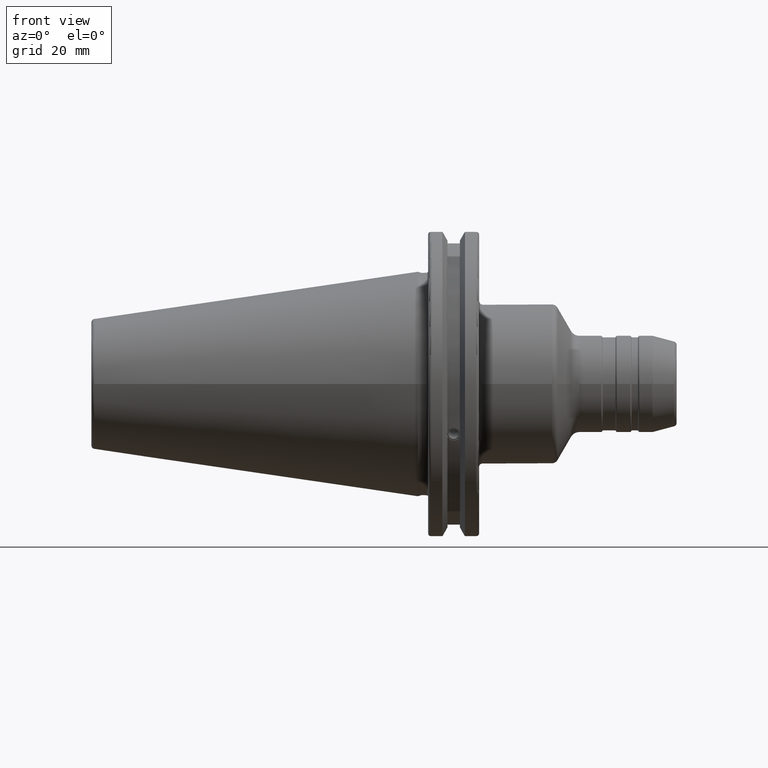
[diagram: clean part render]
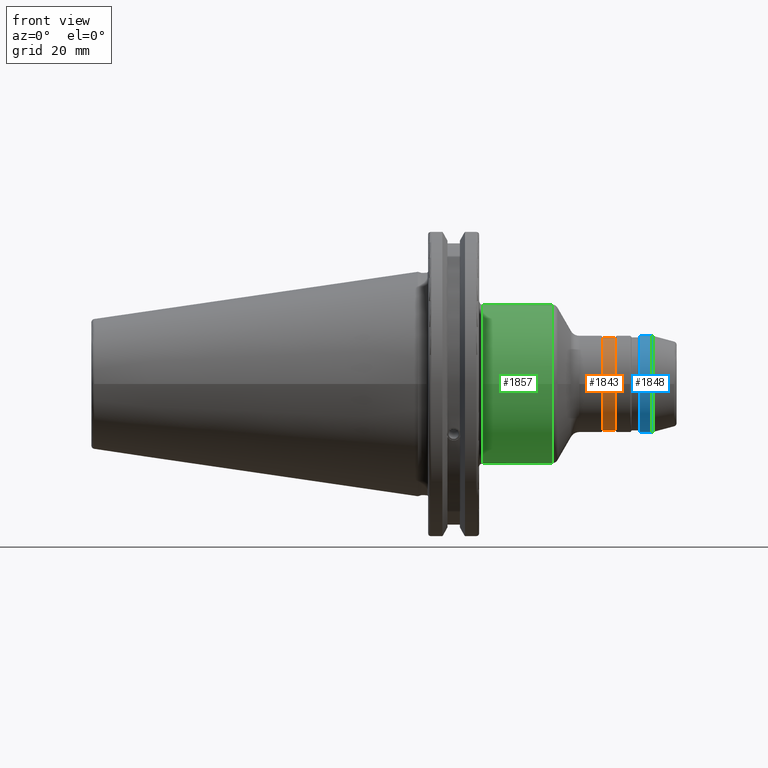
[diagram: same view with three faces highlighted in distinct colors, each labeled with its STEP entity id]
A machine part, front view with three faces highlighted in distinct colors.
Their STEP definitions:

[orange] entity #1843 — the highlighted cylindrical surface (bore or boss wall) has radius 14.5 mm, axis along (1, 0, 0).
#177=FACE_OUTER_BOUND('',#287,.T.);
#287=EDGE_LOOP('',(#1283,#1284,#1285,#1286,#1287,#1288));
#410=LINE('',#2933,#514);
#514=VECTOR('',#2288,14.5);
#631=CIRCLE('',#1995,14.5);
#635=CIRCLE('',#1999,14.5);
#636=CIRCLE('',#2001,14.5);
#637=CIRCLE('',#2002,14.5);
#762=VERTEX_POINT('',#2922);
#763=VERTEX_POINT('',#2923);
#766=VERTEX_POINT('',#2932);
#767=VERTEX_POINT('',#2934);
#965=EDGE_CURVE('',#762,#763,#631,.T.);
#969=EDGE_CURVE('',#763,#762,#635,.T.);
#970=EDGE_CURVE('',#762,#766,#410,.T.);
#971=EDGE_CURVE('',#767,#766,#636,.T.);
#972=EDGE_CURVE('',#766,#767,#637,.T.);
#1283=ORIENTED_EDGE('',*,*,#965,.F.);
#1284=ORIENTED_EDGE('',*,*,#970,.T.);
#1285=ORIENTED_EDGE('',*,*,#971,.F.);
#1286=ORIENTED_EDGE('',*,*,#972,.F.);
#1287=ORIENTED_EDGE('',*,*,#970,.F.);
#1288=ORIENTED_EDGE('',*,*,#969,.F.);
#1803=CYLINDRICAL_SURFACE('',#2000,14.5);
#1843=ADVANCED_FACE('',(#177),#1803,.T.);
#1995=AXIS2_PLACEMENT_3D('',#2924,#2276,#2277);
#1999=AXIS2_PLACEMENT_3D('',#2930,#2284,#2285);
#2000=AXIS2_PLACEMENT_3D('',#2931,#2286,#2287);
#2001=AXIS2_PLACEMENT_3D('',#2935,#2289,#2290);
#2002=AXIS2_PLACEMENT_3D('',#2936,#2291,#2292);
#2276=DIRECTION('center_axis',(1.,0.,0.));
#2277=DIRECTION('ref_axis',(0.,-1.,1.83697019872103E-16));
#2284=DIRECTION('center_axis',(1.,0.,0.));
#2285=DIRECTION('ref_axis',(0.,-1.,1.83697019872103E-16));
#2286=DIRECTION('center_axis',(1.,0.,0.));
#2287=DIRECTION('ref_axis',(0.,1.,0.));
#2288=DIRECTION('',(-1.,0.,0.));
#2289=DIRECTION('center_axis',(-1.,0.,0.));
#2290=DIRECTION('ref_axis',(0.,-1.,1.83697019872103E-16));
#2291=DIRECTION('center_axis',(-1.,0.,0.));
#2292=DIRECTION('ref_axis',(0.,-1.,1.83697019872103E-16));
#2922=CARTESIAN_POINT('',(61.3845299461621,-14.5,-1.77573785876366E-15));
#2923=CARTESIAN_POINT('',(61.3845299461621,-1.77573785876366E-15,14.5));
#2924=CARTESIAN_POINT('Origin',(61.3845299461621,0.,0.));
#2930=CARTESIAN_POINT('Origin',(61.3845299461621,0.,0.));
#2931=CARTESIAN_POINT('Origin',(59.5,0.,0.));
#2932=CARTESIAN_POINT('',(57.6154700538379,-14.5,-1.77573785876366E-15));
#2933=CARTESIAN_POINT('',(59.5,-14.5,-1.77573785876366E-15));
#2934=CARTESIAN_POINT('',(57.6154700538379,-1.77573785876366E-15,14.5));
#2935=CARTESIAN_POINT('Origin',(57.6154700538379,0.,0.));
#2936=CARTESIAN_POINT('Origin',(57.6154700538379,0.,0.));

[blue] entity #1848 — the highlighted cylindrical surface (bore or boss wall) has radius 15 mm, axis along (1, 0, 0).
#182=FACE_OUTER_BOUND('',#292,.T.);
#292=EDGE_LOOP('',(#1313,#1314,#1315,#1316,#1317,#1318));
#413=LINE('',#2965,#517);
#517=VECTOR('',#2327,15.);
#645=CIRCLE('',#2014,15.);
#646=CIRCLE('',#2015,15.);
#648=CIRCLE('',#2018,15.);
#649=CIRCLE('',#2019,15.);
#774=VERTEX_POINT('',#2956);
#775=VERTEX_POINT('',#2957);
#776=VERTEX_POINT('',#2962);
#777=VERTEX_POINT('',#2963);
#982=EDGE_CURVE('',#774,#775,#645,.T.);
#983=EDGE_CURVE('',#775,#774,#646,.T.);
#985=EDGE_CURVE('',#776,#777,#648,.T.);
#986=EDGE_CURVE('',#776,#775,#413,.T.);
#987=EDGE_CURVE('',#777,#776,#649,.T.);
#1313=ORIENTED_EDGE('',*,*,#985,.F.);
#1314=ORIENTED_EDGE('',*,*,#986,.T.);
#1315=ORIENTED_EDGE('',*,*,#982,.F.);
#1316=ORIENTED_EDGE('',*,*,#983,.F.);
#1317=ORIENTED_EDGE('',*,*,#986,.F.);
#1318=ORIENTED_EDGE('',*,*,#987,.F.);
#1804=CYLINDRICAL_SURFACE('',#2017,15.);
#1848=ADVANCED_FACE('',(#182),#1804,.T.);
#2014=AXIS2_PLACEMENT_3D('',#2958,#2317,#2318);
#2015=AXIS2_PLACEMENT_3D('',#2959,#2319,#2320);
#2017=AXIS2_PLACEMENT_3D('',#2961,#2323,#2324);
#2018=AXIS2_PLACEMENT_3D('',#2964,#2325,#2326);
#2019=AXIS2_PLACEMENT_3D('',#2966,#2328,#2329);
#2317=DIRECTION('center_axis',(-1.,0.,0.));
#2318=DIRECTION('ref_axis',(0.,-1.,1.83697019872103E-16));
#2319=DIRECTION('center_axis',(-1.,0.,0.));
#2320=DIRECTION('ref_axis',(0.,-1.,1.83697019872103E-16));
#2323=DIRECTION('center_axis',(1.,0.,0.));
#2324=DIRECTION('ref_axis',(0.,1.,0.));
#2325=DIRECTION('center_axis',(1.,0.,0.));
#2326=DIRECTION('ref_axis',(0.,-1.,1.83697019872103E-16));
#2327=DIRECTION('',(-1.,0.,0.));
#2328=DIRECTION('center_axis',(1.,0.,0.));
#2329=DIRECTION('ref_axis',(0.,-1.,1.83697019872103E-16));
#2956=CARTESIAN_POINT('',(69.0196152422707,-1.83697019872103E-15,15.));
#2957=CARTESIAN_POINT('',(69.0196152422707,-15.,-1.83697019872103E-15));
#2958=CARTESIAN_POINT('Origin',(69.0196152422707,0.,0.));
#2959=CARTESIAN_POINT('Origin',(69.0196152422707,0.,0.));
#2961=CARTESIAN_POINT('Origin',(70.9122867597285,0.,0.));
#2962=CARTESIAN_POINT('',(72.9042458872749,-15.,-1.83697019872103E-15));
#2963=CARTESIAN_POINT('',(72.9042458872749,-1.83697019872103E-15,15.));
#2964=CARTESIAN_POINT('Origin',(72.9042458872749,0.,0.));
#2965=CARTESIAN_POINT('',(70.9122867597285,-15.,-1.83697019872103E-15));
#2966=CARTESIAN_POINT('Origin',(72.9042458872749,0.,0.));

[green] entity #1857 — the highlighted cylindrical surface (bore or boss wall) has radius 24.75 mm, axis along (1, 0, 0).
#191=FACE_OUTER_BOUND('',#301,.T.);
#301=EDGE_LOOP('',(#1367,#1368,#1369,#1370,#1371,#1372));
#417=LINE('',#3013,#521);
#521=VECTOR('',#2389,24.75);
#667=CIRCLE('',#2045,24.75);
#668=CIRCLE('',#2046,24.75);
#669=CIRCLE('',#2048,24.75);
#670=CIRCLE('',#2049,24.75);
#790=VERTEX_POINT('',#3006);
#791=VERTEX_POINT('',#3008);
#792=VERTEX_POINT('',#3012);
#793=VERTEX_POINT('',#3014);
#1008=EDGE_CURVE('',#790,#791,#667,.T.);
#1009=EDGE_CURVE('',#791,#790,#668,.T.);
#1010=EDGE_CURVE('',#791,#792,#417,.T.);
#1011=EDGE_CURVE('',#793,#792,#669,.T.);
#1012=EDGE_CURVE('',#792,#793,#670,.T.);
#1367=ORIENTED_EDGE('',*,*,#1009,.F.);
#1368=ORIENTED_EDGE('',*,*,#1010,.T.);
#1369=ORIENTED_EDGE('',*,*,#1011,.F.);
#1370=ORIENTED_EDGE('',*,*,#1012,.F.);
#1371=ORIENTED_EDGE('',*,*,#1010,.F.);
#1372=ORIENTED_EDGE('',*,*,#1008,.F.);
#1807=CYLINDRICAL_SURFACE('',#2047,24.75);
#1857=ADVANCED_FACE('',(#191),#1807,.T.);
#2045=AXIS2_PLACEMENT_3D('',#3009,#2383,#2384);
#2046=AXIS2_PLACEMENT_3D('',#3010,#2385,#2386);
#2047=AXIS2_PLACEMENT_3D('',#3011,#2387,#2388);
#2048=AXIS2_PLACEMENT_3D('',#3015,#2390,#2391);
#2049=AXIS2_PLACEMENT_3D('',#3016,#2392,#2393);
#2383=DIRECTION('center_axis',(1.,0.,0.));
#2384=DIRECTION('ref_axis',(0.,-1.,1.83697019872103E-16));
#2385=DIRECTION('center_axis',(1.,0.,0.));
#2386=DIRECTION('ref_axis',(0.,-1.,1.83697019872103E-16));
#2387=DIRECTION('center_axis',(1.,0.,0.));
#2388=DIRECTION('ref_axis',(0.,1.,0.));
#2389=DIRECTION('',(-1.,0.,0.));
#2390=DIRECTION('center_axis',(-1.,0.,0.));
#2391=DIRECTION('ref_axis',(0.,-1.,-1.22464679914735E-16));
#2392=DIRECTION('center_axis',(-1.,0.,0.));
#2393=DIRECTION('ref_axis',(0.,-1.,-1.22464679914735E-16));
#3006=CARTESIAN_POINT('',(41.7161343370219,-3.0310008278897E-15,24.75));
#3008=CARTESIAN_POINT('',(41.7161343370219,-24.75,-3.0310008278897E-15));
#3009=CARTESIAN_POINT('Origin',(41.7161343370219,0.,0.));
#3010=CARTESIAN_POINT('Origin',(41.7161343370219,0.,0.));
#3011=CARTESIAN_POINT('Origin',(30.9604174377006,0.,0.));
#3012=CARTESIAN_POINT('',(20.05,-24.75,-3.0310008278897E-15));
#3013=CARTESIAN_POINT('',(30.9604174377006,-24.75,-3.0310008278897E-15));
#3014=CARTESIAN_POINT('',(20.05,-3.0310008278897E-15,-24.75));
#3015=CARTESIAN_POINT('Origin',(20.05,0.,0.));
#3016=CARTESIAN_POINT('Origin',(20.05,0.,0.));